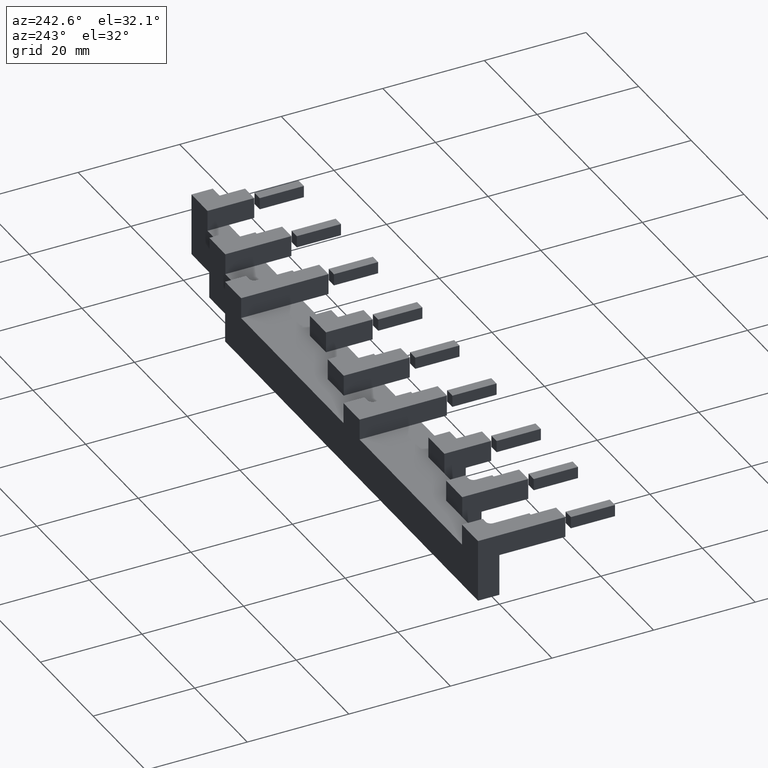
[diagram: clean part render]
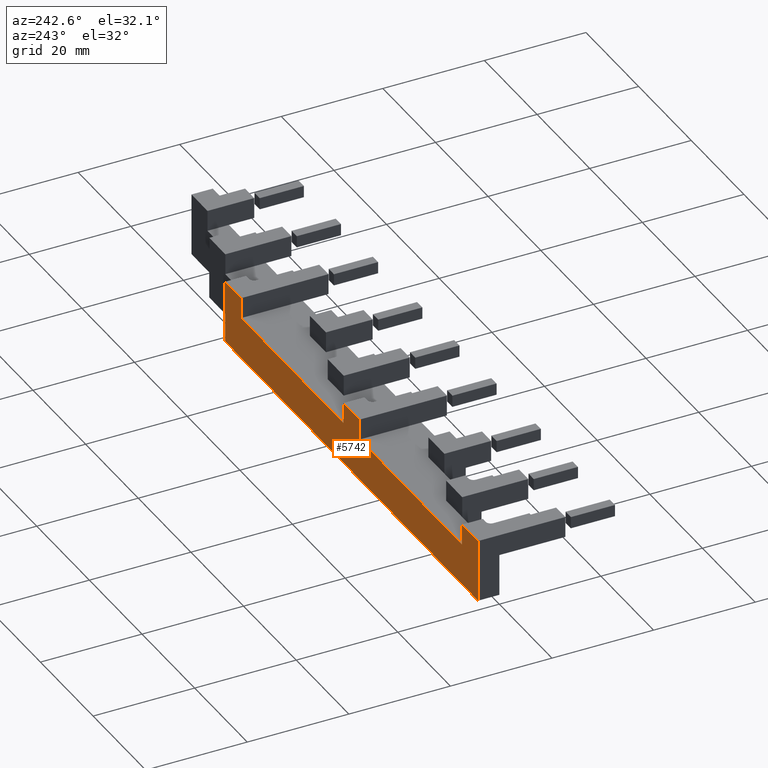
[diagram: same view with one face highlighted and labeled with its STEP entity id]
A machine part, auxiliary view. The second image highlights one B-rep face of the part: STEP entity #5742.
In plain terms, the highlighted planar face has unit normal (0, 1, 0).
Its self-contained STEP definition (entity closure, byte-faithful):
#3630=CARTESIAN_POINT('',(90.000000000000071,4.200000000008957,103.99999999999109));
#3631=VERTEX_POINT('',#3630);
#3638=CARTESIAN_POINT('',(51.099999999999724,4.200000000008431,103.9999999999916));
#3639=VERTEX_POINT('',#3638);
#3640=CARTESIAN_POINT('',(90.000000000000071,4.200000000008948,103.99999999999109));
#3641=DIRECTION('',(-1.0,0.0,0.0));
#3642=VECTOR('',#3641,38.90000000000034);
#3643=LINE('',#3640,#3642);
#3644=EDGE_CURVE('',#3631,#3639,#3643,.T.);
#3719=CARTESIAN_POINT('',(45.000000000000064,4.200000000008374,103.99999999999167));
#3720=VERTEX_POINT('',#3719);
#3727=CARTESIAN_POINT('',(6.099999999999723,4.200000000007862,103.99999999999218));
#3728=VERTEX_POINT('',#3727);
#3729=CARTESIAN_POINT('',(45.000000000000064,4.200000000008369,103.99999999999169));
#3730=DIRECTION('',(-1.0,0.0,0.0));
#3731=VECTOR('',#3730,38.90000000000034);
#3732=LINE('',#3729,#3731);
#3733=EDGE_CURVE('',#3720,#3728,#3732,.T.);
#3822=CARTESIAN_POINT('',(-5.403378E-014,4.200000000007777,95.799999999992252));
#3823=VERTEX_POINT('',#3822);
#3830=CARTESIAN_POINT('',(96.09999999999954,4.200000000009013,95.799999999991002));
#3831=VERTEX_POINT('',#3830);
#3832=CARTESIAN_POINT('',(-5.329071E-014,4.200000000007778,95.799999999992266));
#3833=DIRECTION('',(1.0,0.0,0.0));
#3834=VECTOR('',#3833,96.099999999999596);
#3835=LINE('',#3832,#3834);
#3836=EDGE_CURVE('',#3823,#3831,#3835,.T.);
#4018=CARTESIAN_POINT('',(1.078457E-013,4.200000000007791,108.09999999999226));
#4019=VERTEX_POINT('',#4018);
#4026=CARTESIAN_POINT('',(-5.403378E-014,4.200000000007791,95.799999999992252));
#4027=DIRECTION('',(0.0,0.0,1.0));
#4028=VECTOR('',#4027,12.299999999999997);
#4029=LINE('',#4026,#4028);
#4030=EDGE_CURVE('',#3823,#4019,#4029,.T.);
#4049=CARTESIAN_POINT('',(6.099999999999777,4.200000000007862,108.09999999999219));
#4050=VERTEX_POINT('',#4049);
#4066=CARTESIAN_POINT('',(6.099999999999723,4.200000000007862,103.99999999999218));
#4067=DIRECTION('',(0.0,0.0,1.0));
#4068=VECTOR('',#4067,4.099999999999994);
#4069=LINE('',#4066,#4068);
#4070=EDGE_CURVE('',#3728,#4050,#4069,.T.);
#4165=CARTESIAN_POINT('',(1.074696E-013,4.200000000007798,108.09999999999228));
#4166=DIRECTION('',(1.0,0.0,0.0));
#4167=VECTOR('',#4166,6.099999999999669);
#4168=LINE('',#4165,#4167);
#4169=EDGE_CURVE('',#4019,#4050,#4168,.T.);
#4728=CARTESIAN_POINT('',(90.000000000000128,4.200000000008957,108.09999999999107));
#4729=VERTEX_POINT('',#4728);
#4736=CARTESIAN_POINT('',(90.000000000000071,4.200000000008957,103.99999999999109));
#4737=DIRECTION('',(0.0,0.0,1.0));
#4738=VECTOR('',#4737,4.099999999999994);
#4739=LINE('',#4736,#4738);
#4740=EDGE_CURVE('',#3631,#4729,#4739,.T.);
#4758=CARTESIAN_POINT('',(96.099999999999824,4.200000000009013,108.099999999991));
#4759=VERTEX_POINT('',#4758);
#4782=CARTESIAN_POINT('',(96.099999999999653,4.200000000009013,95.799999999991016));
#4783=DIRECTION('',(0.0,0.0,1.0));
#4784=VECTOR('',#4783,12.299999999999997);
#4785=LINE('',#4782,#4784);
#4786=EDGE_CURVE('',#3831,#4759,#4785,.T.);
#4879=CARTESIAN_POINT('',(90.000000000000142,4.20000000000895,108.09999999999108));
#4880=DIRECTION('',(1.0,0.0,0.0));
#4881=VECTOR('',#4880,6.099999999999682);
#4882=LINE('',#4879,#4881);
#4883=EDGE_CURVE('',#4729,#4759,#4882,.T.);
#5686=CARTESIAN_POINT('',(45.000000000000114,4.200000000008374,108.09999999999167));
#5687=VERTEX_POINT('',#5686);
#5694=CARTESIAN_POINT('',(45.000000000000064,4.200000000008374,103.99999999999167));
#5695=DIRECTION('',(0.0,0.0,1.0));
#5696=VECTOR('',#5695,4.099999999999994);
#5697=LINE('',#5694,#5696);
#5698=EDGE_CURVE('',#3720,#5687,#5697,.T.);
#5711=CARTESIAN_POINT('',(45.000000000000064,4.200000000008374,103.99999999999167));
#5712=DIRECTION('',(0.0,1.0,0.0));
#5713=DIRECTION('',(0.0,0.0,1.0));
#5714=AXIS2_PLACEMENT_3D('',#5711,#5712,#5713);
#5715=PLANE('',#5714);
#5716=CARTESIAN_POINT('',(51.099999999999781,4.200000000008431,108.09999999999158));
#5717=VERTEX_POINT('',#5716);
#5718=CARTESIAN_POINT('',(45.000000000000114,4.200000000008367,108.09999999999167));
#5719=DIRECTION('',(1.0,0.0,0.0));
#5720=VECTOR('',#5719,6.099999999999668);
#5721=LINE('',#5718,#5720);
#5722=EDGE_CURVE('',#5687,#5717,#5721,.T.);
#5723=ORIENTED_EDGE('',*,*,#5722,.T.);
#5724=CARTESIAN_POINT('',(51.099999999999724,4.200000000008431,103.9999999999916));
#5725=DIRECTION('',(0.0,0.0,1.0));
#5726=VECTOR('',#5725,4.099999999999994);
#5727=LINE('',#5724,#5726);
#5728=EDGE_CURVE('',#3639,#5717,#5727,.T.);
#5729=ORIENTED_EDGE('',*,*,#5728,.F.);
#5730=ORIENTED_EDGE('',*,*,#3644,.F.);
#5731=ORIENTED_EDGE('',*,*,#4740,.T.);
#5732=ORIENTED_EDGE('',*,*,#4883,.T.);
#5733=ORIENTED_EDGE('',*,*,#4786,.F.);
#5734=ORIENTED_EDGE('',*,*,#3836,.F.);
#5735=ORIENTED_EDGE('',*,*,#4030,.T.);
#5736=ORIENTED_EDGE('',*,*,#4169,.T.);
#5737=ORIENTED_EDGE('',*,*,#4070,.F.);
#5738=ORIENTED_EDGE('',*,*,#3733,.F.);
#5739=ORIENTED_EDGE('',*,*,#5698,.T.);
#5740=EDGE_LOOP('',(#5723,#5729,#5730,#5731,#5732,#5733,#5734,#5735,#5736,#5737,#5738,#5739));
#5741=FACE_OUTER_BOUND('',#5740,.T.);
#5742=ADVANCED_FACE('',(#5741),#5715,.T.);